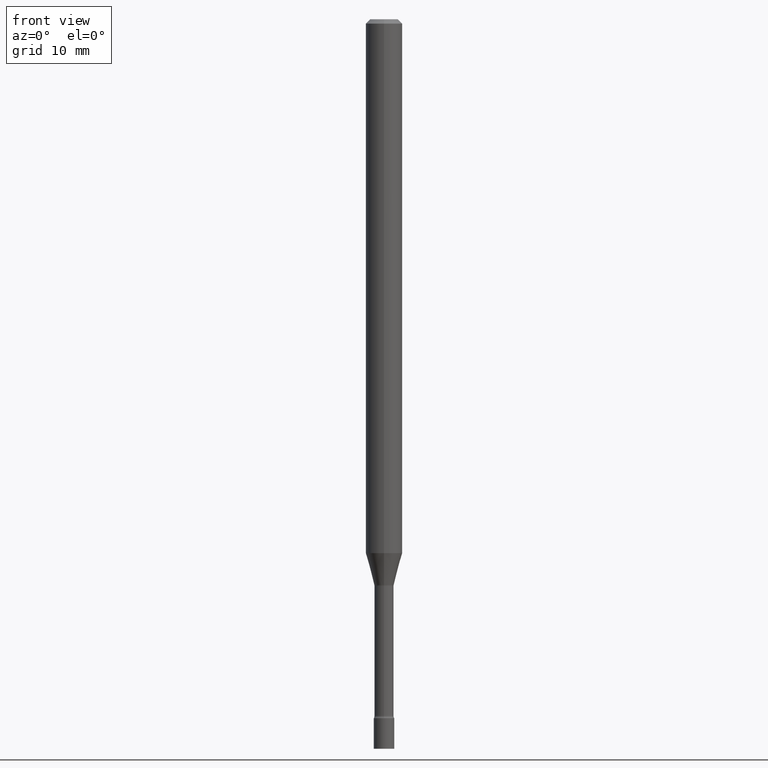
[diagram: clean part render]
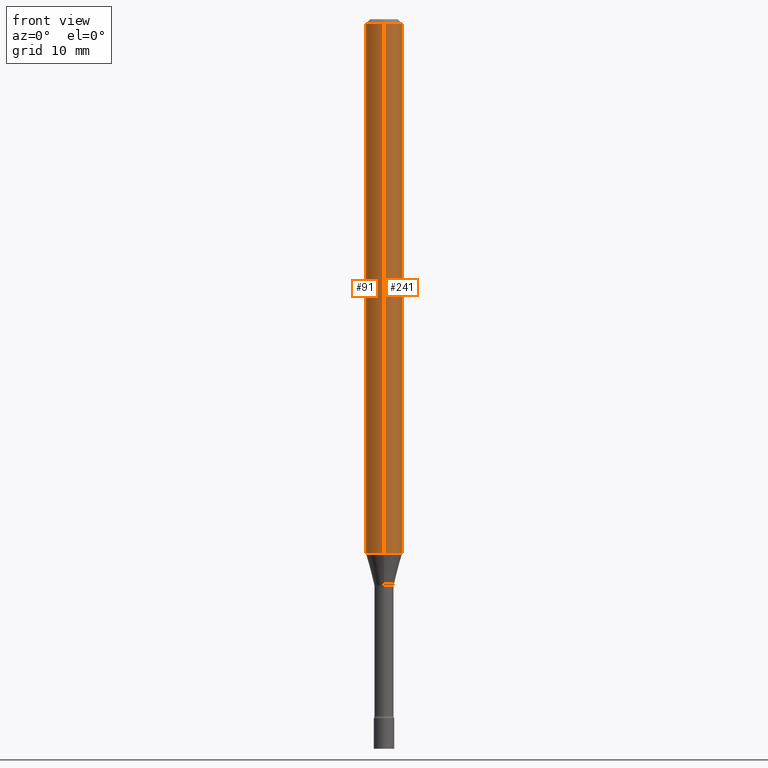
[diagram: same view with one multi-face feature highlighted, each face labeled with its STEP entity id]
A machine part, front view. The highlighted faces form ONE feature: a constant-radius fillet chain: 2 tangent blend faces with common blend radius 1.5875 mm. The faces share edges in the B-rep.
Their STEP definitions:
[1] entity #91 (Cylinder):
#31 = CARTESIAN_POINT ( 'NONE',  ( 4.474160396507796531E-29, -6.387633060957110208E-15, -1.829531296095961546 ) ) ;
#32 = DIRECTION ( 'NONE',  ( -2.445522744571361657E-29, 3.491404096004088929E-15, 1.000000000000000000 ) ) ;
#42 = EDGE_LOOP ( 'NONE', ( #326, #232, #512, #414 ) ) ;
#48 = DIRECTION ( 'NONE',  ( -2.445522744571361657E-29, 3.491404096004088929E-15, 1.000000000000000000 ) ) ;
#52 = DIRECTION ( 'NONE',  ( -2.445522744571361657E-29, 3.491404096004088929E-15, 1.000000000000000000 ) ) ;
#56 = CYLINDRICAL_SURFACE ( 'NONE', #462, 0.06250000000000000000 ) ;
#75 = DIRECTION ( 'NONE',  ( -6.982962677686265922E-15, -1.000000000000000000, 3.483106191921935554E-15 ) ) ;
#91 = ADVANCED_FACE ( 'NONE', ( #290 ), #56, .T. ) ;
#107 = EDGE_CURVE ( 'NONE', #481, #274, #166, .T. ) ;
#116 = CARTESIAN_POINT ( 'NONE',  ( -4.364351673553912750E-16, -0.06250000000000005551, -0.01499999999999981209 ) ) ;
#141 = VERTEX_POINT ( 'NONE', #153 ) ;
#147 = CIRCLE ( 'NONE', #223, 0.06250000000000000000 ) ;
#153 = CARTESIAN_POINT ( 'NONE',  ( -4.364351673553470495E-16, -0.06250000000000642542, -1.829531296095961324 ) ) ;
#157 = DIRECTION ( 'NONE',  ( -6.982962677686265922E-15, -1.000000000000000000, 4.370956789862821150E-15 ) ) ;
#160 = CARTESIAN_POINT ( 'NONE',  ( 3.668284116857050035E-31, -5.237106144006144215E-17, -0.01500000000000003067 ) ) ;
#163 = CARTESIAN_POINT ( 'NONE',  ( -4.364351673553916201E-16, -0.06250000000000000000, 2.182127560002555580E-16 ) ) ;
#166 = LINE ( 'NONE', #403, #230 ) ;
#172 = AXIS2_PLACEMENT_3D ( 'NONE', #160, #311, #75 ) ;
#202 = EDGE_CURVE ( 'NONE', #141, #237, #350, .T. ) ;
#223 = AXIS2_PLACEMENT_3D ( 'NONE', #31, #32, #157 ) ;
#230 = VECTOR ( 'NONE', #48, 39.37007874015748143 ) ;
#231 = EDGE_CURVE ( 'NONE', #481, #141, #147, .T. ) ;
#232 = ORIENTED_EDGE ( 'NONE', *, *, #231, .T. ) ;
#237 = VERTEX_POINT ( 'NONE', #116 ) ;
#253 = CARTESIAN_POINT ( 'NONE',  ( 0.000000000000000000, 0.000000000000000000, 0.000000000000000000 ) ) ;
#274 = VERTEX_POINT ( 'NONE', #379 ) ;
#289 = EDGE_CURVE ( 'NONE', #274, #237, #433, .T. ) ;
#290 = FACE_OUTER_BOUND ( 'NONE', #42, .T. ) ;
#293 = DIRECTION ( 'NONE',  ( -6.982962677686265922E-15, -1.000000000000000000, 3.491404096004088929E-15 ) ) ;
#311 = DIRECTION ( 'NONE',  ( -2.445522744571361657E-29, 3.491404096004088929E-15, 1.000000000000000000 ) ) ;
#319 = DIRECTION ( 'NONE',  ( -2.445522744571361657E-29, 3.491404096004088929E-15, 1.000000000000000000 ) ) ;
#326 = ORIENTED_EDGE ( 'NONE', *, *, #107, .F. ) ;
#350 = LINE ( 'NONE', #163, #500 ) ;
#379 = CARTESIAN_POINT ( 'NONE',  ( 4.440892098501075812E-16, 0.06249999999999995143, -0.01500000000000024751 ) ) ;
#403 = CARTESIAN_POINT ( 'NONE',  ( 4.440892098500625669E-16, 0.06250000000000000000, -2.182127560002555580E-16 ) ) ;
#414 = ORIENTED_EDGE ( 'NONE', *, *, #289, .F. ) ;
#433 = CIRCLE ( 'NONE', #172, 0.06250000000000000000 ) ;
#462 = AXIS2_PLACEMENT_3D ( 'NONE', #253, #52, #293 ) ;
#481 = VERTEX_POINT ( 'NONE', #484 ) ;
#484 = CARTESIAN_POINT ( 'NONE',  ( 4.440892098501070882E-16, 0.06249999999999358152, -1.829531296095961990 ) ) ;
#500 = VECTOR ( 'NONE', #319, 39.37007874015748143 ) ;
#512 = ORIENTED_EDGE ( 'NONE', *, *, #202, .T. ) ;
[2] entity #241 (Cylinder):
#48 = DIRECTION ( 'NONE',  ( -2.445522744571361657E-29, 3.491404096004088929E-15, 1.000000000000000000 ) ) ;
#81 = ORIENTED_EDGE ( 'NONE', *, *, #312, .T. ) ;
#102 = FACE_OUTER_BOUND ( 'NONE', #174, .T. ) ;
#107 = EDGE_CURVE ( 'NONE', #481, #274, #166, .T. ) ;
#110 = DIRECTION ( 'NONE',  ( -2.445522744571361657E-29, 3.491404096004088929E-15, 1.000000000000000000 ) ) ;
#116 = CARTESIAN_POINT ( 'NONE',  ( -4.364351673553912750E-16, -0.06250000000000005551, -0.01499999999999981209 ) ) ;
#120 = DIRECTION ( 'NONE',  ( -6.982962677686265922E-15, -1.000000000000000000, 4.370956789862821150E-15 ) ) ;
#141 = VERTEX_POINT ( 'NONE', #153 ) ;
#149 = EDGE_CURVE ( 'NONE', #237, #274, #162, .T. ) ;
#153 = CARTESIAN_POINT ( 'NONE',  ( -4.364351673553470495E-16, -0.06250000000000642542, -1.829531296095961324 ) ) ;
#154 = DIRECTION ( 'NONE',  ( -2.445522744571361657E-29, 3.491404096004088929E-15, 1.000000000000000000 ) ) ;
#162 = CIRCLE ( 'NONE', #342, 0.06250000000000000000 ) ;
#163 = CARTESIAN_POINT ( 'NONE',  ( -4.364351673553916201E-16, -0.06250000000000000000, 2.182127560002555580E-16 ) ) ;
#166 = LINE ( 'NONE', #403, #230 ) ;
#174 = EDGE_LOOP ( 'NONE', ( #81, #329, #201, #300 ) ) ;
#201 = ORIENTED_EDGE ( 'NONE', *, *, #149, .F. ) ;
#202 = EDGE_CURVE ( 'NONE', #141, #237, #350, .T. ) ;
#230 = VECTOR ( 'NONE', #48, 39.37007874015748143 ) ;
#237 = VERTEX_POINT ( 'NONE', #116 ) ;
#241 = ADVANCED_FACE ( 'NONE', ( #102 ), #337, .T. ) ;
#262 = DIRECTION ( 'NONE',  ( -2.445522744571361657E-29, 3.491404096004088929E-15, 1.000000000000000000 ) ) ;
#273 = DIRECTION ( 'NONE',  ( -6.982962677686265922E-15, -1.000000000000000000, 3.483106191921935554E-15 ) ) ;
#274 = VERTEX_POINT ( 'NONE', #379 ) ;
#300 = ORIENTED_EDGE ( 'NONE', *, *, #202, .F. ) ;
#312 = EDGE_CURVE ( 'NONE', #141, #481, #315, .T. ) ;
#315 = CIRCLE ( 'NONE', #418, 0.06250000000000000000 ) ;
#319 = DIRECTION ( 'NONE',  ( -2.445522744571361657E-29, 3.491404096004088929E-15, 1.000000000000000000 ) ) ;
#329 = ORIENTED_EDGE ( 'NONE', *, *, #107, .T. ) ;
#333 = CARTESIAN_POINT ( 'NONE',  ( 4.474160396507796531E-29, -6.387633060957110208E-15, -1.829531296095961546 ) ) ;
#337 = CYLINDRICAL_SURFACE ( 'NONE', #405, 0.06250000000000000000 ) ;
#342 = AXIS2_PLACEMENT_3D ( 'NONE', #511, #262, #273 ) ;
#350 = LINE ( 'NONE', #163, #500 ) ;
#379 = CARTESIAN_POINT ( 'NONE',  ( 4.440892098501075812E-16, 0.06249999999999995143, -0.01500000000000024751 ) ) ;
#381 = DIRECTION ( 'NONE',  ( -6.982962677686265922E-15, -1.000000000000000000, 3.491404096004088929E-15 ) ) ;
#403 = CARTESIAN_POINT ( 'NONE',  ( 4.440892098500625669E-16, 0.06250000000000000000, -2.182127560002555580E-16 ) ) ;
#405 = AXIS2_PLACEMENT_3D ( 'NONE', #508, #154, #381 ) ;
#418 = AXIS2_PLACEMENT_3D ( 'NONE', #333, #110, #120 ) ;
#481 = VERTEX_POINT ( 'NONE', #484 ) ;
#484 = CARTESIAN_POINT ( 'NONE',  ( 4.440892098501070882E-16, 0.06249999999999358152, -1.829531296095961990 ) ) ;
#500 = VECTOR ( 'NONE', #319, 39.37007874015748143 ) ;
#508 = CARTESIAN_POINT ( 'NONE',  ( 0.000000000000000000, 0.000000000000000000, 0.000000000000000000 ) ) ;
#511 = CARTESIAN_POINT ( 'NONE',  ( 3.668284116857050035E-31, -5.237106144006144215E-17, -0.01500000000000003067 ) ) ;